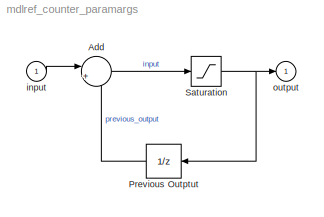
MODEL mdlref_counter_paramargs
KIND model
WORKSPACE source: external: MAT-File  (data not in archive)
BLOCK [Inport]  input
  IconDisplay = Port number
  LatchInput = off
  Port = 1
BLOCK [Sum] Add
  IconShape = round
  InputSameDT = off
  Inputs = |++
  OutDataTypeMode = Inherit via internal rule
  OutScaling = 2^-10
  Ports = [2, 1]
  SaturateOnIntegerOverflow = off
BLOCK [UnitDelay] Previous Outptut
  SampleTime = -1
BLOCK [Saturate] Saturation
  LowerLimit = lower_saturation_limit
  UpperLimit = upper_saturation_limit
BLOCK [Outport] output
  BusOutputAsStruct = off
  IconDisplay = Port number
LINE  input:1 -> Add:1
LINE Add:1 -> Saturation:1
LINE Previous Outptut:1 -> Add:2
NET Saturation:1 -> Previous Outptut:1, output:1
note: NET lines group one-source signal fan-out (src -> all destinations, sorted); 1:1 wires keep LINE
